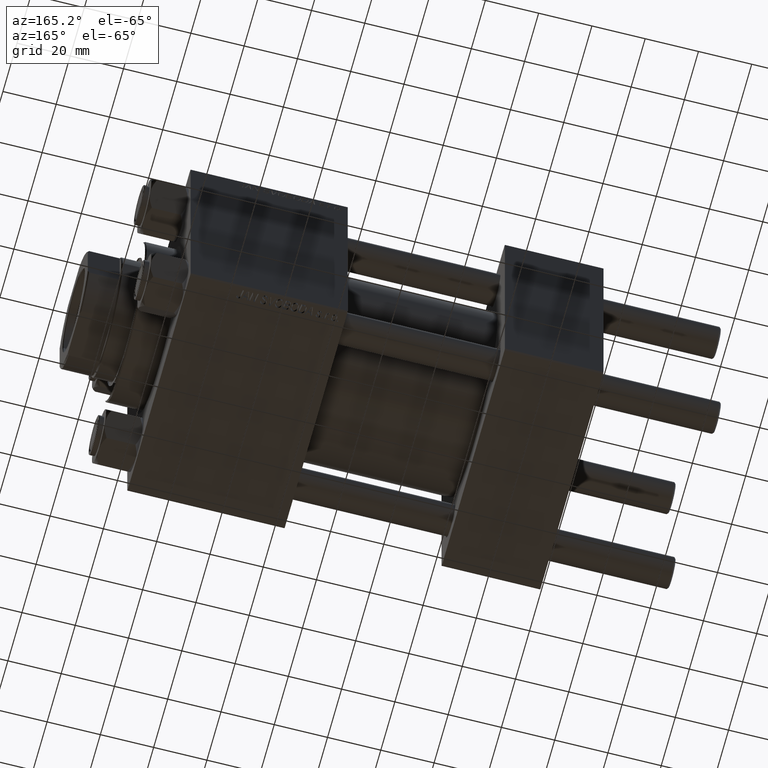
[diagram: clean part render]
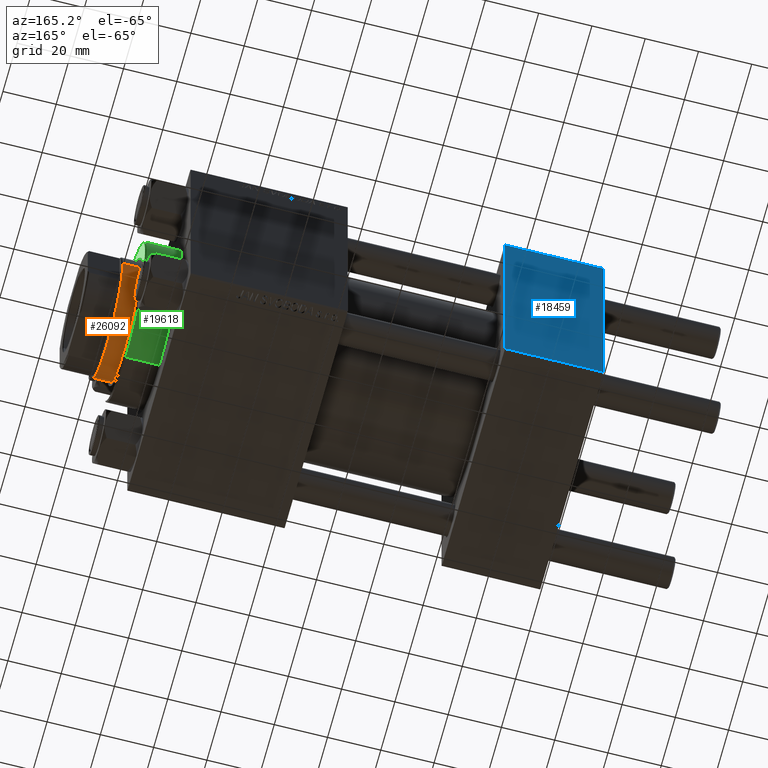
[diagram: same view with three faces highlighted in distinct colors, each labeled with its STEP entity id]
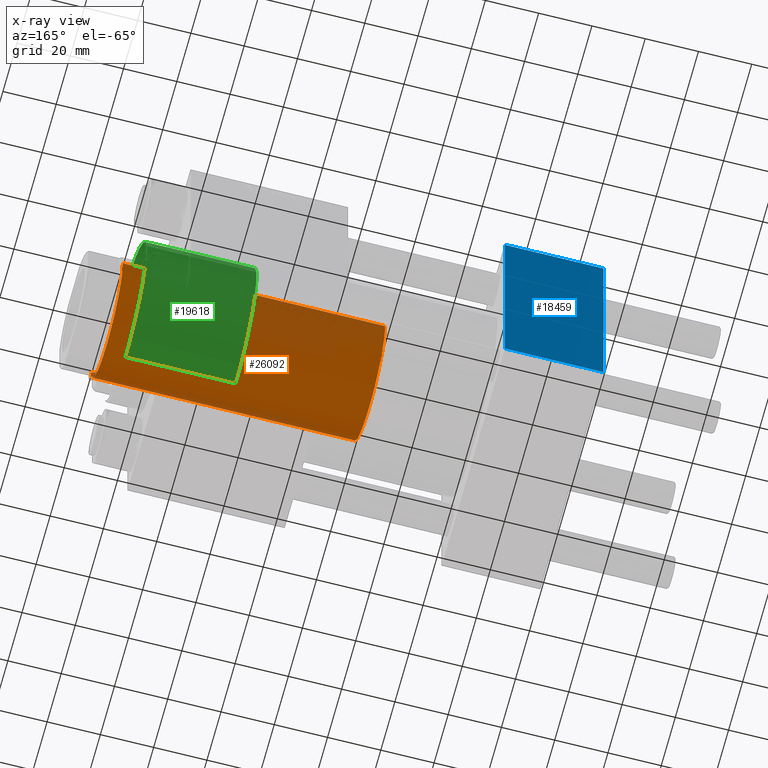
[diagram: x-ray of the same camera — body ghosted, the three highlighted faces saturated]
A machine part, auxiliary view with three faces highlighted in distinct colors.
The next image is the same camera in x-ray (body ghosted, the three faces saturated) — at least one of them is partly hidden behind the body in this view.
Their STEP definitions:

[orange] entity #26092 — the highlighted cylindrical surface (partial cylindrical patch) has radius 22.5 mm, axis along (-1, 0, 0).
#3927 = CARTESIAN_POINT ( 'NONE',  ( 0.000000000000000000, 0.000000000000000000, 138.0000000000000000 ) ) ;
#4709 = DIRECTION ( 'NONE',  ( -0.000000000000000000, -0.000000000000000000, -1.000000000000000000 ) ) ;
#4852 = EDGE_CURVE ( 'NONE', #39876, #14169, #35719, .T. ) ;
#5506 = AXIS2_PLACEMENT_3D ( 'NONE', #3927, #11739, #31134 ) ;
#8932 = DIRECTION ( 'NONE',  ( -0.000000000000000000, -0.000000000000000000, -1.000000000000000000 ) ) ;
#9146 = ORIENTED_EDGE ( 'NONE', *, *, #29069, .T. ) ;
#11469 = EDGE_CURVE ( 'NONE', #14169, #45108, #34905, .T. ) ;
#11739 = DIRECTION ( 'NONE',  ( -0.000000000000000000, -0.000000000000000000, -1.000000000000000000 ) ) ;
#11753 = VECTOR ( 'NONE', #8932, 1000.000000000000000 ) ;
#12671 = VERTEX_POINT ( 'NONE', #47676 ) ;
#13039 = CARTESIAN_POINT ( 'NONE',  ( 0.000000000000000000, 0.000000000000000000, 137.5000000000000568 ) ) ;
#13427 = CIRCLE ( 'NONE', #42360, 22.50000000000000355 ) ;
#14169 = VERTEX_POINT ( 'NONE', #40241 ) ;
#14298 = CARTESIAN_POINT ( 'NONE',  ( -22.50000000000000355, 0.000000000000000000, 39.00000000000000000 ) ) ;
#16415 = CARTESIAN_POINT ( 'NONE',  ( 0.000000000000000000, 0.000000000000000000, 39.00000000000000000 ) ) ;
#17293 = ORIENTED_EDGE ( 'NONE', *, *, #4852, .T. ) ;
#19850 = CARTESIAN_POINT ( 'NONE',  ( 22.50000000000000355, 2.755455298081545172E-15, 138.0000000000000000 ) ) ;
#20021 = CARTESIAN_POINT ( 'NONE',  ( -22.50000000000000355, 0.000000000000000000, 138.0000000000000000 ) ) ;
#21940 = VECTOR ( 'NONE', #4709, 1000.000000000000000 ) ;
#22366 = CARTESIAN_POINT ( 'NONE',  ( 22.50000000000000355, 2.755455298081545172E-15, 137.5000000000000568 ) ) ;
#23644 = DIRECTION ( 'NONE',  ( 1.000000000000000000, 0.000000000000000000, 0.000000000000000000 ) ) ;
#24242 = DIRECTION ( 'NONE',  ( 1.000000000000000000, 0.000000000000000000, 0.000000000000000000 ) ) ;
#25521 = ORIENTED_EDGE ( 'NONE', *, *, #28377, .F. ) ;
#26092 = ADVANCED_FACE ( 'NONE', ( #46275 ), #42727, .T. ) ;
#28377 = EDGE_CURVE ( 'NONE', #12671, #45108, #46249, .T. ) ;
#28487 = AXIS2_PLACEMENT_3D ( 'NONE', #16415, #39347, #24242 ) ;
#29069 = EDGE_CURVE ( 'NONE', #12671, #39876, #13427, .T. ) ;
#31134 = DIRECTION ( 'NONE',  ( -1.000000000000000000, 0.000000000000000000, 0.000000000000000000 ) ) ;
#31182 = DIRECTION ( 'NONE',  ( 0.000000000000000000, 0.000000000000000000, -1.000000000000000000 ) ) ;
#34090 = ORIENTED_EDGE ( 'NONE', *, *, #11469, .T. ) ;
#34905 = CIRCLE ( 'NONE', #28487, 22.50000000000000355 ) ;
#35719 = LINE ( 'NONE', #19850, #21940 ) ;
#39347 = DIRECTION ( 'NONE',  ( 0.000000000000000000, 0.000000000000000000, 1.000000000000000000 ) ) ;
#39876 = VERTEX_POINT ( 'NONE', #22366 ) ;
#40241 = CARTESIAN_POINT ( 'NONE',  ( 22.50000000000000355, 2.755455298081545172E-15, 39.00000000000000000 ) ) ;
#42360 = AXIS2_PLACEMENT_3D ( 'NONE', #13039, #31182, #23644 ) ;
#42727 = CYLINDRICAL_SURFACE ( 'NONE', #5506, 22.50000000000000355 ) ;
#45108 = VERTEX_POINT ( 'NONE', #14298 ) ;
#46249 = LINE ( 'NONE', #20021, #11753 ) ;
#46275 = FACE_OUTER_BOUND ( 'NONE', #46473, .T. ) ;
#46473 = EDGE_LOOP ( 'NONE', ( #9146, #17293, #34090, #25521 ) ) ;
#47676 = CARTESIAN_POINT ( 'NONE',  ( -22.50000000000000355, 0.000000000000000000, 137.5000000000000568 ) ) ;

[blue] entity #18459 — the highlighted planar face has unit normal (0, 1, 0).
#322 = VERTEX_POINT ( 'NONE', #29674 ) ;
#595 = VERTEX_POINT ( 'NONE', #45217 ) ;
#1611 = CARTESIAN_POINT ( 'NONE',  ( 37.00000000000000000, 44.99999999999998579, 44.50000000000001421 ) ) ;
#3778 = LINE ( 'NONE', #4031, #16787 ) ;
#4031 = CARTESIAN_POINT ( 'NONE',  ( 37.00000000000000000, 44.99999999999998579, 45.00000000000001421 ) ) ;
#4379 = VECTOR ( 'NONE', #41574, 1000.000000000000000 ) ;
#8134 = DIRECTION ( 'NONE',  ( -0.000000000000000000, 1.000000000000000000, 0.000000000000000000 ) ) ;
#8630 = DIRECTION ( 'NONE',  ( 0.000000000000000000, -0.000000000000000000, 1.000000000000000000 ) ) ;
#10842 = CARTESIAN_POINT ( 'NONE',  ( 0.000000000000000000, 44.99999999999998579, 45.00000000000001421 ) ) ;
#13867 = EDGE_CURVE ( 'NONE', #595, #40582, #45368, .T. ) ;
#15683 = CARTESIAN_POINT ( 'NONE',  ( 37.00000000000000000, 44.99999999999998579, -44.49999999999998579 ) ) ;
#16787 = VECTOR ( 'NONE', #30503, 1000.000000000000000 ) ;
#18459 = ADVANCED_FACE ( 'NONE', ( #35592 ), #38868, .T. ) ;
#19815 = EDGE_LOOP ( 'NONE', ( #38562, #38017, #29972, #47888 ) ) ;
#20615 = VERTEX_POINT ( 'NONE', #46604 ) ;
#21702 = VECTOR ( 'NONE', #32352, 1000.000000000000000 ) ;
#27036 = DIRECTION ( 'NONE',  ( -1.000000000000000000, 0.000000000000000000, 0.000000000000000000 ) ) ;
#29674 = CARTESIAN_POINT ( 'NONE',  ( 37.00000000000000000, 44.99999999999998579, -44.49999999999995737 ) ) ;
#29972 = ORIENTED_EDGE ( 'NONE', *, *, #13867, .F. ) ;
#30503 = DIRECTION ( 'NONE',  ( 0.000000000000000000, 0.000000000000000000, -1.000000000000000000 ) ) ;
#32352 = DIRECTION ( 'NONE',  ( 1.000000000000000000, 0.000000000000000000, 0.000000000000000000 ) ) ;
#35592 = FACE_OUTER_BOUND ( 'NONE', #19815, .T. ) ;
#36130 = EDGE_CURVE ( 'NONE', #595, #20615, #36144, .T. ) ;
#36144 = LINE ( 'NONE', #1611, #21702 ) ;
#38017 = ORIENTED_EDGE ( 'NONE', *, *, #49708, .T. ) ;
#38260 = EDGE_CURVE ( 'NONE', #20615, #322, #3778, .T. ) ;
#38562 = ORIENTED_EDGE ( 'NONE', *, *, #38260, .T. ) ;
#38868 = PLANE ( 'NONE',  #47202 ) ;
#39371 = CARTESIAN_POINT ( 'NONE',  ( 37.00000000000000000, 44.99999999999998579, 45.00000000000001421 ) ) ;
#40582 = VERTEX_POINT ( 'NONE', #46664 ) ;
#41574 = DIRECTION ( 'NONE',  ( 0.000000000000000000, 0.000000000000000000, -1.000000000000000000 ) ) ;
#45217 = CARTESIAN_POINT ( 'NONE',  ( 0.000000000000000000, 44.99999999999998579, 44.50000000000001421 ) ) ;
#45368 = LINE ( 'NONE', #10842, #4379 ) ;
#46183 = LINE ( 'NONE', #15683, #49332 ) ;
#46604 = CARTESIAN_POINT ( 'NONE',  ( 37.00000000000000000, 44.99999999999998579, 44.50000000000001421 ) ) ;
#46664 = CARTESIAN_POINT ( 'NONE',  ( 0.000000000000000000, 44.99999999999998579, -44.49999999999995737 ) ) ;
#47202 = AXIS2_PLACEMENT_3D ( 'NONE', #39371, #8134, #8630 ) ;
#47888 = ORIENTED_EDGE ( 'NONE', *, *, #36130, .T. ) ;
#49332 = VECTOR ( 'NONE', #27036, 1000.000000000000000 ) ;
#49708 = EDGE_CURVE ( 'NONE', #322, #40582, #46183, .T. ) ;

[green] entity #19618 — the highlighted cylindrical surface (partial cylindrical patch) has radius 30 mm, axis along (-1, -0, 0).
#159 = DIRECTION ( 'NONE',  ( -0.000000000000000000, -0.000000000000000000, -1.000000000000000000 ) ) ;
#386 = VERTEX_POINT ( 'NONE', #46021 ) ;
#1262 = FACE_OUTER_BOUND ( 'NONE', #34432, .T. ) ;
#1380 = ORIENTED_EDGE ( 'NONE', *, *, #19438, .T. ) ;
#4969 = ORIENTED_EDGE ( 'NONE', *, *, #45664, .T. ) ;
#7845 = DIRECTION ( 'NONE',  ( -0.000000000000000000, -0.000000000000000000, -1.000000000000000000 ) ) ;
#8863 = ORIENTED_EDGE ( 'NONE', *, *, #47083, .T. ) ;
#9012 = AXIS2_PLACEMENT_3D ( 'NONE', #18438, #14175, #48460 ) ;
#9852 = VECTOR ( 'NONE', #159, 1000.000000000000000 ) ;
#10287 = CARTESIAN_POINT ( 'NONE',  ( 30.00000000000000000, 3.673940397442059178E-15, 41.19999999999998153 ) ) ;
#11267 = CARTESIAN_POINT ( 'NONE',  ( 30.00000000000000000, 3.673940397442059178E-15, 28.69999999999999929 ) ) ;
#13125 = CARTESIAN_POINT ( 'NONE',  ( 0.000000000000000000, 0.000000000000000000, 28.69999999999999929 ) ) ;
#14175 = DIRECTION ( 'NONE',  ( 0.000000000000000000, 0.000000000000000000, -1.000000000000000000 ) ) ;
#15155 = DIRECTION ( 'NONE',  ( 0.000000000000000000, 0.000000000000000000, 1.000000000000000000 ) ) ;
#15402 = DIRECTION ( 'NONE',  ( 1.000000000000000000, 0.000000000000000000, 0.000000000000000000 ) ) ;
#16142 = CYLINDRICAL_SURFACE ( 'NONE', #24742, 30.00000000000000000 ) ;
#18438 = CARTESIAN_POINT ( 'NONE',  ( 0.000000000000000000, 0.000000000000000000, 41.19999999999998153 ) ) ;
#19438 = EDGE_CURVE ( 'NONE', #386, #22117, #48861, .T. ) ;
#19492 = EDGE_CURVE ( 'NONE', #38753, #22117, #34300, .T. ) ;
#19582 = LINE ( 'NONE', #11267, #9852 ) ;
#19618 = ADVANCED_FACE ( 'NONE', ( #1262 ), #16142, .T. ) ;
#21141 = ORIENTED_EDGE ( 'NONE', *, *, #19492, .F. ) ;
#22117 = VERTEX_POINT ( 'NONE', #24125 ) ;
#24125 = CARTESIAN_POINT ( 'NONE',  ( -30.00000000000000000, 0.000000000000000000, 0.000000000000000000 ) ) ;
#24742 = AXIS2_PLACEMENT_3D ( 'NONE', #13125, #47392, #36309 ) ;
#25116 = CIRCLE ( 'NONE', #9012, 30.00000000000000000 ) ;
#27007 = CARTESIAN_POINT ( 'NONE',  ( -30.00000000000000000, 0.000000000000000000, 28.69999999999999929 ) ) ;
#31017 = CARTESIAN_POINT ( 'NONE',  ( 0.000000000000000000, 0.000000000000000000, 0.000000000000000000 ) ) ;
#34300 = LINE ( 'NONE', #27007, #39164 ) ;
#34432 = EDGE_LOOP ( 'NONE', ( #4969, #8863, #1380, #21141 ) ) ;
#36309 = DIRECTION ( 'NONE',  ( -1.000000000000000000, 0.000000000000000000, 0.000000000000000000 ) ) ;
#38753 = VERTEX_POINT ( 'NONE', #46084 ) ;
#39164 = VECTOR ( 'NONE', #7845, 1000.000000000000000 ) ;
#42603 = VERTEX_POINT ( 'NONE', #10287 ) ;
#45664 = EDGE_CURVE ( 'NONE', #38753, #42603, #25116, .T. ) ;
#46021 = CARTESIAN_POINT ( 'NONE',  ( 30.00000000000000000, 3.673940397442059178E-15, 0.000000000000000000 ) ) ;
#46084 = CARTESIAN_POINT ( 'NONE',  ( -30.00000000000000000, 0.000000000000000000, 41.19999999999998153 ) ) ;
#47083 = EDGE_CURVE ( 'NONE', #42603, #386, #19582, .T. ) ;
#47392 = DIRECTION ( 'NONE',  ( -0.000000000000000000, -0.000000000000000000, -1.000000000000000000 ) ) ;
#48044 = AXIS2_PLACEMENT_3D ( 'NONE', #31017, #15155, #15402 ) ;
#48460 = DIRECTION ( 'NONE',  ( 1.000000000000000000, 0.000000000000000000, 0.000000000000000000 ) ) ;
#48861 = CIRCLE ( 'NONE', #48044, 30.00000000000000000 ) ;